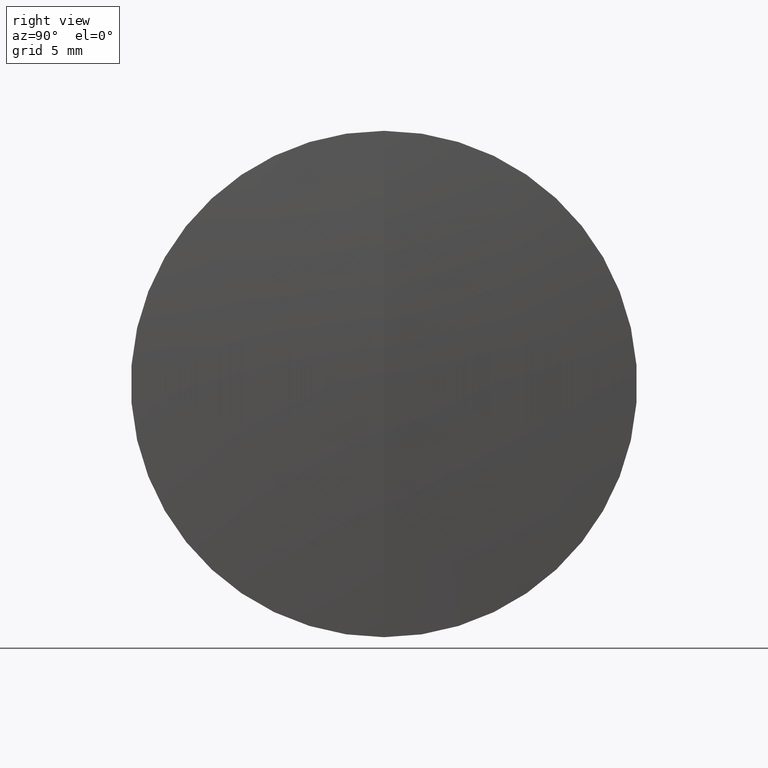
[diagram: clean part render]
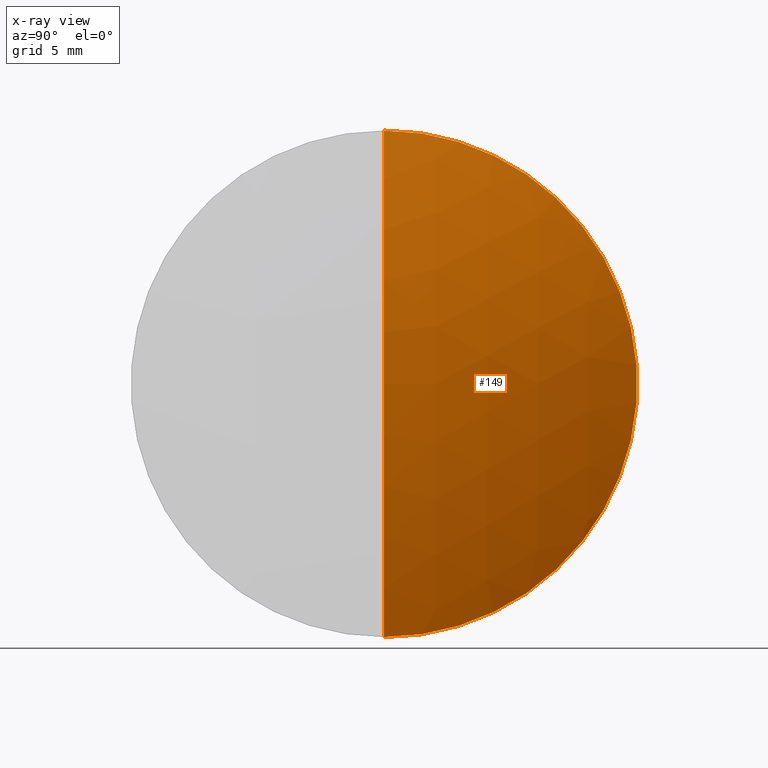
[diagram: x-ray — body ghosted, one internal face saturated and labeled with its STEP entity id]
A machine part, right view, then the same camera in x-ray: the body is ghosted and one INTERNAL B-rep face — a face not visible from any outside direction — is saturated and labeled: STEP entity #149.
In plain terms, the highlighted spherical surface has radius 33 mm.
Its self-contained STEP definition (entity closure, byte-faithful):
#6 = CARTESIAN_POINT ( 'NONE',  ( 294.9373187479075700, 1.555301434917139400E-015, -12.70000000000000800 ) ) ;
#14 = CARTESIAN_POINT ( 'NONE',  ( 264.4789865545651500, 0.0000000000000000000, 6.938893903907228400E-015 ) ) ;
#15 = DIRECTION ( 'NONE',  ( 0.0000000000000000000, -1.224646799147353500E-016, 1.000000000000000000 ) ) ;
#30 = CARTESIAN_POINT ( 'NONE',  ( 294.9373187479075700, 0.0000000000000000000, 12.70000000000000800 ) ) ;
#33 = CIRCLE ( 'NONE', #135, 33.00000000000000000 ) ;
#41 = DIRECTION ( 'NONE',  ( 0.0000000000000000000, 0.0000000000000000000, 1.000000000000000000 ) ) ;
#45 = FACE_OUTER_BOUND ( 'NONE', #291, .T. ) ;
#47 = ORIENTED_EDGE ( 'NONE', *, *, #146, .F. ) ;
#49 = EDGE_CURVE ( 'NONE', #201, #187, #33, .T. ) ;
#93 = CARTESIAN_POINT ( 'NONE',  ( 264.4789865545651500, 0.0000000000000000000, 6.938893903907228400E-015 ) ) ;
#96 = CIRCLE ( 'NONE', #259, 33.00000000000000000 ) ;
#99 = EDGE_CURVE ( 'NONE', #201, #307, #96, .T. ) ;
#107 = AXIS2_PLACEMENT_3D ( 'NONE', #275, #249, #303 ) ;
#113 = ORIENTED_EDGE ( 'NONE', *, *, #49, .T. ) ;
#114 = CIRCLE ( 'NONE', #107, 12.70000000000000800 ) ;
#125 = DIRECTION ( 'NONE',  ( -0.0000000000000000000, 1.000000000000000000, 1.224646799147353200E-016 ) ) ;
#135 = AXIS2_PLACEMENT_3D ( 'NONE', #93, #125, #15 ) ;
#145 = CARTESIAN_POINT ( 'NONE',  ( 264.4789865545651500, 0.0000000000000000000, 6.938893903907228400E-015 ) ) ;
#146 = EDGE_CURVE ( 'NONE', #307, #187, #114, .T. ) ;
#149 = ADVANCED_FACE ( 'NONE', ( #45 ), #245, .T. ) ;
#150 = CARTESIAN_POINT ( 'NONE',  ( 297.4789865545651500, 0.0000000000000000000, 8.959561122500361500E-015 ) ) ;
#181 = DIRECTION ( 'NONE',  ( 0.0000000000000000000, 0.0000000000000000000, -1.000000000000000000 ) ) ;
#187 = VERTEX_POINT ( 'NONE', #6 ) ;
#201 = VERTEX_POINT ( 'NONE', #150 ) ;
#207 = DIRECTION ( 'NONE',  ( 0.0000000000000000000, -1.000000000000000000, 0.0000000000000000000 ) ) ;
#221 = DIRECTION ( 'NONE',  ( 0.0000000000000000000, 1.000000000000000000, 0.0000000000000000000 ) ) ;
#245 = SPHERICAL_SURFACE ( 'NONE', #339, 33.00000000000000000 ) ;
#249 = DIRECTION ( 'NONE',  ( -1.000000000000000000, -0.0000000000000000000, -0.0000000000000000000 ) ) ;
#259 = AXIS2_PLACEMENT_3D ( 'NONE', #14, #207, #181 ) ;
#274 = ORIENTED_EDGE ( 'NONE', *, *, #99, .F. ) ;
#275 = CARTESIAN_POINT ( 'NONE',  ( 294.9373187479075700, 0.0000000000000000000, 0.0000000000000000000 ) ) ;
#291 = EDGE_LOOP ( 'NONE', ( #274, #113, #47 ) ) ;
#303 = DIRECTION ( 'NONE',  ( 0.0000000000000000000, 0.0000000000000000000, 1.000000000000000000 ) ) ;
#307 = VERTEX_POINT ( 'NONE', #30 ) ;
#339 = AXIS2_PLACEMENT_3D ( 'NONE', #145, #221, #41 ) ;